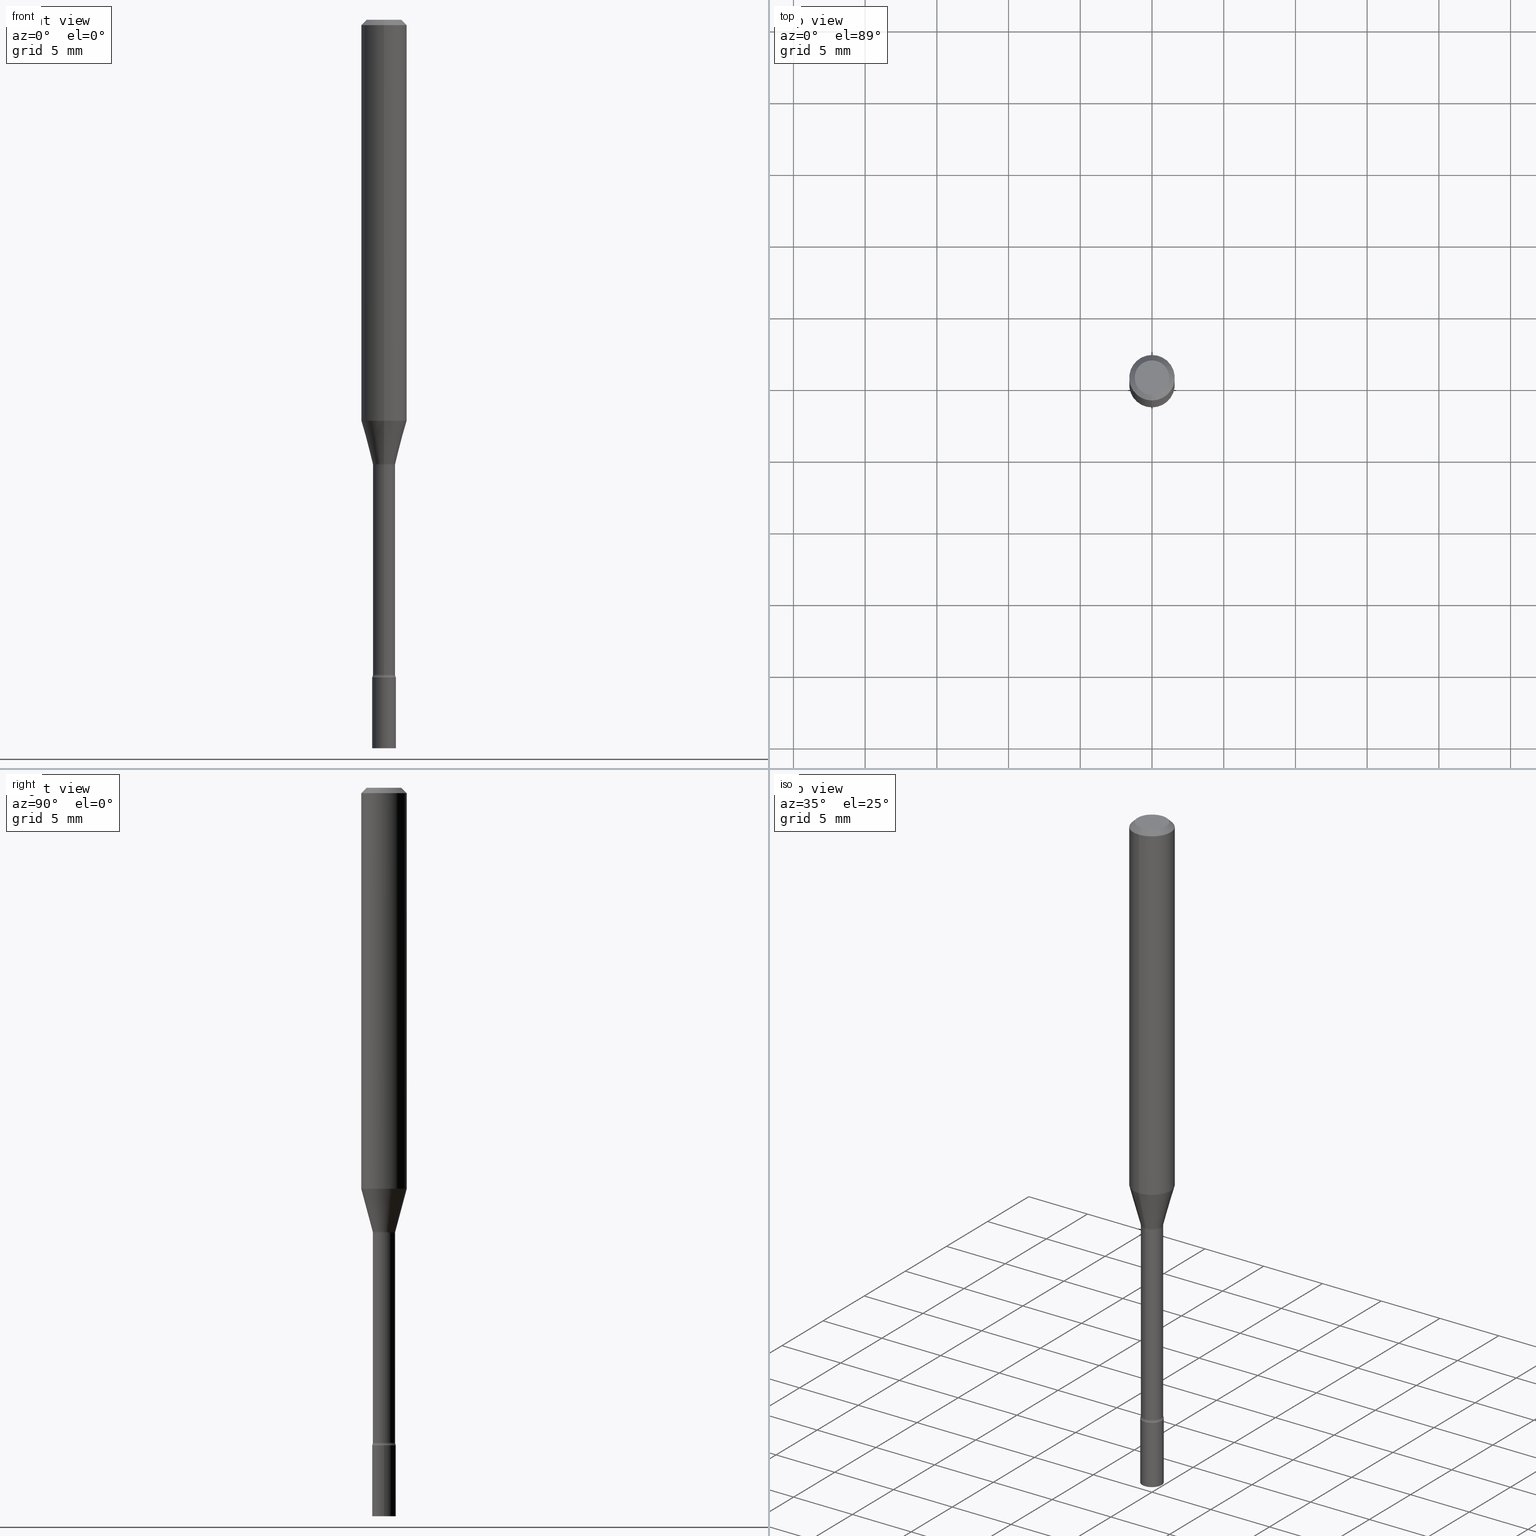
[diagram: canonical four-view strip — front | top / right | iso, engineering-drawing reading convention]
A machine part, canonical four-view strip (front | top / right | iso — engineering-drawing reading convention). The complete STEP part file that produces these views, byte-faithful:
ISO-10303-21;
HEADER;
FILE_DESCRIPTION (( 'STEP AP203' ),
    '1' );
FILE_NAME ('04308.STEP',
    '2024-03-08T23:02:27',
    ( '' ),
    ( '' ),
    'SwSTEP 2.0',
    'SolidWorks 2023',
    '' );
FILE_SCHEMA (( 'CONFIG_CONTROL_DESIGN' ));
ENDSEC;

DATA;
#1 = EDGE_CURVE ( 'NONE', #6, #374, #116, .T. ) ;
#2 = CARTESIAN_POINT ( 'NONE',  ( 4.364351673553919652E-16, 0.06249999999999995143, -0.01500000000000024751 ) ) ;
#3 = CIRCLE ( 'NONE', #333, 0.06250000000000000000 ) ;
#4 = ADVANCED_FACE ( 'NONE', ( #337 ), #447, .T. ) ;
#5 = CARTESIAN_POINT ( 'NONE',  ( 2.269462870248477753E-16, 0.03249999999999370059, -1.804999999999999938 ) ) ;
#6 = VERTEX_POINT ( 'NONE', #324 ) ;
#7 = EDGE_LOOP ( 'NONE', ( #416, #493, #178, #372 ) ) ;
#8 = AXIS2_PLACEMENT_3D ( 'NONE', #114, #312, #519 ) ;
#9 = DIRECTION ( 'NONE',  ( -2.445468806185136597E-29, 3.491481338843145583E-15, 1.000000000000000000 ) ) ;
#10 = CIRCLE ( 'NONE', #61, 0.03250000000000000111 ) ;
#11 = VERTEX_POINT ( 'NONE', #13 ) ;
#12 = CARTESIAN_POINT ( 'NONE',  ( 4.414159783248886756E-29, -6.301996953432445034E-15, -1.804999999999999938 ) ) ;
#13 = CARTESIAN_POINT ( 'NONE',  ( -4.364351673553912750E-16, -0.06250000000000005551, -0.01499999999999981209 ) ) ;
#14 = ORIENTED_EDGE ( 'NONE', *, *, #105, .T. ) ;
#15 = ORIENTED_EDGE ( 'NONE', *, *, #302, .F. ) ;
#16 = CALENDAR_DATE ( 2024, 8, 3 ) ;
#17 = EDGE_LOOP ( 'NONE', ( #123, #14 ) ) ;
#18 = AXIS2_PLACEMENT_3D ( 'NONE', #85, #35, #206 ) ;
#19 = EDGE_CURVE ( 'NONE', #182, #11, #86, .T. ) ;
#20 = CC_DESIGN_APPROVAL ( #439, ( #512 ) ) ;
#21 = ORIENTED_EDGE ( 'NONE', *, *, #73, .F. ) ;
#22 = PERSON_AND_ORGANIZATION ( #395, #256 ) ;
#23 = COORDINATED_UNIVERSAL_TIME_OFFSET ( 5, 0, .BEHIND. ) ;
#24 = DIRECTION ( 'NONE',  ( 6.982962677686265922E-15, 1.000000000000000000, -3.491411054533210764E-15 ) ) ;
#25 = DIRECTION ( 'NONE',  ( -1.000000000000000000, 6.982962677686265922E-15, -4.883557194083112340E-29 ) ) ;
#26 = ADVANCED_FACE ( 'NONE', ( #370 ), #257, .T. ) ;
#27 = CARTESIAN_POINT ( 'NONE',  ( 0.000000000000000000, 0.000000000000000000, 0.000000000000000000 ) ) ;
#28 = AXIS2_PLACEMENT_3D ( 'NONE', #307, #511, #470 ) ;
#29 = CARTESIAN_POINT ( 'NONE',  ( 3.668276828184677738E-31, -5.237116581799826623E-17, -0.01500000000000003067 ) ) ;
#30 = APPROVAL ( #183, 'UNSPECIFIED' ) ;
#31 = DIRECTION ( 'NONE',  ( -2.445468806185136597E-29, 3.491481338843145583E-15, 1.000000000000000000 ) ) ;
#32 = ADVANCED_FACE ( 'NONE', ( #57 ), #265, .T. ) ;
#33 = TOROIDAL_SURFACE ( 'NONE', #316, 0.04555000000000006960, 0.01500000000000001853 ) ;
#34 = COORDINATED_UNIVERSAL_TIME_OFFSET ( 5, 0, .BEHIND. ) ;
#35 = DIRECTION ( 'NONE',  ( -2.445517885456446816E-29, 3.491411054533210764E-15, 1.000000000000000000 ) ) ;
#36 = FACE_OUTER_BOUND ( 'NONE', #207, .T. ) ;
#37 = ADVANCED_FACE ( 'NONE', ( #226 ), #299, .T. ) ;
#38 = MANIFOLD_SOLID_BREP ( 'Body-Move/Copy2[2]', #188 ) ;
#39 = CARTESIAN_POINT ( 'NONE',  ( 2.988361198319589844E-29, -4.266416281312019547E-15, -1.221974787463810941 ) ) ;
#40 = DIRECTION ( 'NONE',  ( -1.000000000000000000, 6.982962677686265922E-15, -4.876176775795935793E-29 ) ) ;
#41 = AXIS2_PLACEMENT_3D ( 'NONE', #218, #460, #128 ) ;
#42 = CC_DESIGN_PERSON_AND_ORGANIZATION_ASSIGNMENT ( #163, #158, ( #456 ) ) ;
#43 = ORIENTED_EDGE ( 'NONE', *, *, #171, .T. ) ;
#44 = DIRECTION ( 'NONE',  ( -2.445517885456446816E-29, 3.491411054533210764E-15, 1.000000000000000000 ) ) ;
#45 = ORIENTED_EDGE ( 'NONE', *, *, #1, .F. ) ;
#46 = ORIENTED_EDGE ( 'NONE', *, *, #233, .T. ) ;
#47 = ADVANCED_FACE ( 'NONE', ( #63 ), #179, .F. ) ;
#48 = CARTESIAN_POINT ( 'NONE',  ( 0.03250000000000000111, -2.269462870248036484E-16, 1.584757452133678993E-30 ) ) ;
#49 = CONICAL_SURFACE ( 'NONE', #506, 0.06250000000000000000, 0.7853981633974483900 ) ;
#50 = EDGE_LOOP ( 'NONE', ( #331, #423, #247, #172 ) ) ;
#51 = AXIS2_PLACEMENT_3D ( 'NONE', #281, #442, #40 ) ;
#52 = VERTEX_POINT ( 'NONE', #468 ) ;
#53 = VERTEX_POINT ( 'NONE', #348 ) ;
#54 = EDGE_CURVE ( 'NONE', #88, #498, #357, .T. ) ;
#55 = EDGE_LOOP ( 'NONE', ( #363, #262, #458, #177 ) ) ;
#56 = EDGE_CURVE ( 'NONE', #503, #361, #515, .T. ) ;
#57 = FACE_OUTER_BOUND ( 'NONE', #293, .T. ) ;
#58 = ORIENTED_EDGE ( 'NONE', *, *, #192, .T. ) ;
#59 = DIRECTION ( 'NONE',  ( -6.982962677686265922E-15, -1.000000000000000000, 4.397537249142375435E-15 ) ) ;
#60 = CIRCLE ( 'NONE', #161, 0.03250000000000000111 ) ;
#61 = AXIS2_PLACEMENT_3D ( 'NONE', #499, #336, #502 ) ;
#62 = APPROVAL_STATUS ( 'not_yet_approved' ) ;
#63 = FACE_OUTER_BOUND ( 'NONE', #249, .T. ) ;
#64 = ADVANCED_FACE ( 'NONE', ( #71 ), #186, .T. ) ;
#65 = CARTESIAN_POINT ( 'NONE',  ( 0.03250000000000000111, -6.529070103636681305E-15, -1.804999999999999938 ) ) ;
#66 = CC_DESIGN_PERSON_AND_ORGANIZATION_ASSIGNMENT ( #467, #426, ( #154 ) ) ;
#67 = LINE ( 'NONE', #185, #162 ) ;
#68 = DIRECTION ( 'NONE',  ( -6.982962677686265922E-15, -1.000000000000000000, 3.491411054533210764E-15 ) ) ;
#69 = AXIS2_PLACEMENT_3D ( 'NONE', #335, #9, #97 ) ;
#70 = CC_DESIGN_APPROVAL ( #417, ( #154 ) ) ;
#71 = FACE_OUTER_BOUND ( 'NONE', #136, .T. ) ;
#72 = DIRECTION ( 'NONE',  ( 1.000000000000000000, -6.982962677686258033E-15, 0.000000000000000000 ) ) ;
#73 = EDGE_CURVE ( 'NONE', #52, #260, #60, .T. ) ;
#74 = APPROVAL_STATUS ( 'not_yet_approved' ) ;
#75 = DIRECTION ( 'NONE',  ( -2.445517885456446816E-29, 3.491411054533210764E-15, 1.000000000000000000 ) ) ;
#76 = AXIS2_PLACEMENT_3D ( 'NONE', #330, #264, #59 ) ;
#77 = EDGE_CURVE ( 'NONE', #418, #361, #380, .T. ) ;
#78 = DIRECTION ( 'NONE',  ( 1.000000000000000000, -6.982962677686265922E-15, 4.876176775795935793E-29 ) ) ;
#79 = EDGE_CURVE ( 'NONE', #323, #6, #386, .T. ) ;
#80 = FACE_OUTER_BOUND ( 'NONE', #325, .T. ) ;
#81 = APPLICATION_PROTOCOL_DEFINITION ( 'international standard', 'config_control_design', 1994, #419 ) ;
#82 = PLANE ( 'NONE',  #431 ) ;
#83 = ORIENTED_EDGE ( 'NONE', *, *, #396, .F. ) ;
#84 = CALENDAR_DATE ( 2024, 8, 3 ) ;
#85 = CARTESIAN_POINT ( 'NONE',  ( 2.978866999261165530E-29, -4.252861626184099890E-15, -1.218092501787273019 ) ) ;
#86 = CIRCLE ( 'NONE', #342, 0.06250000000000000000 ) ;
#87 = ORIENTED_EDGE ( 'NONE', *, *, #436, .F. ) ;
#88 = VERTEX_POINT ( 'NONE', #65 ) ;
#89 = LINE ( 'NONE', #214, #242 ) ;
#90 = ORIENTED_EDGE ( 'NONE', *, *, #19, .F. ) ;
#91 = EDGE_LOOP ( 'NONE', ( #410, #217, #421, #15 ) ) ;
#92 = VECTOR ( 'NONE', #44, 39.37007874015748143 ) ;
#93 = EDGE_LOOP ( 'NONE', ( #327, #142, #492, #87 ) ) ;
#94 = LOCAL_TIME ( 18, 2, 27.00000000000000000, #478 ) ;
#95 = SECURITY_CLASSIFICATION_LEVEL ( 'unclassified' ) ;
#96 = ORIENTED_EDGE ( 'NONE', *, *, #436, .T. ) ;
#97 = DIRECTION ( 'NONE',  ( 1.000000000000000000, -6.982962677686265922E-15, 4.876176775795935232E-29 ) ) ;
#98 = DATE_AND_TIME ( #429, #310 ) ;
#99 = ORIENTED_EDGE ( 'NONE', *, *, #138, .F. ) ;
#100 = DIRECTION ( 'NONE',  ( -2.445517885456446816E-29, 3.491411054533210764E-15, 1.000000000000000000 ) ) ;
#101 = DIRECTION ( 'NONE',  ( -2.445517885456446816E-29, 3.491411054533210764E-15, 1.000000000000000000 ) ) ;
#102 = AXIS2_PLACEMENT_3D ( 'NONE', #346, #101, #266 ) ;
#103 = DIRECTION ( 'NONE',  ( -6.982962677686265922E-15, -1.000000000000000000, 3.491411054533210764E-15 ) ) ;
#104 = DESIGN_CONTEXT ( 'detailed design', #419, 'design' ) ;
#105 = EDGE_CURVE ( 'NONE', #498, #88, #365, .T. ) ;
#106 = CARTESIAN_POINT ( 'NONE',  ( 4.414071195164171423E-29, -6.302123816611877952E-15, -1.804999999999999938 ) ) ;
#107 = ADVANCED_FACE ( 'NONE', ( #340 ), #445, .F. ) ;
#108 = FACE_OUTER_BOUND ( 'NONE', #180, .T. ) ;
#109 = CIRCLE ( 'NONE', #394, 0.03106111260566398607 ) ;
#110 = APPROVAL_PERSON_ORGANIZATION ( #319, #439, #317 ) ;
#111 = DIRECTION ( 'NONE',  ( 2.445517885456446536E-29, -3.491411054533210764E-15, -1.000000000000000000 ) ) ;
#112 = DIRECTION ( 'NONE',  ( -6.982962677686265922E-15, -1.000000000000000000, 0.000000000000000000 ) ) ;
#113 = DIRECTION ( 'NONE',  ( -6.982962677686265922E-15, -1.000000000000000000, 4.370956789862821150E-15 ) ) ;
#114 = CARTESIAN_POINT ( 'NONE',  ( 3.236522161387554650E-16, 0.04554999999999573279, -1.221974787463810941 ) ) ;
#115 = CLOSED_SHELL ( 'NONE', ( #4, #269, #462, #349 ) ) ;
#116 = CIRCLE ( 'NONE', #412, 0.06250000000000000000 ) ;
#117 = AXIS2_PLACEMENT_3D ( 'NONE', #345, #384, #146 ) ;
#118 = CALENDAR_DATE ( 2024, 8, 3 ) ;
#119 = DIRECTION ( 'NONE',  ( 4.937700262164548042E-15, 0.7071067811865451302, -0.7071067811865499042 ) ) ;
#120 = CC_DESIGN_DATE_AND_TIME_ASSIGNMENT ( #98, #378, ( #507 ) ) ;
#121 = FACE_OUTER_BOUND ( 'NONE', #250, .T. ) ;
#122 = CARTESIAN_POINT ( 'NONE',  ( 3.668276828184677738E-31, -5.237116581799826623E-17, -0.01500000000000003067 ) ) ;
#123 = ORIENTED_EDGE ( 'NONE', *, *, #54, .T. ) ;
#124 = CIRCLE ( 'NONE', #255, 0.03106111260566398607 ) ;
#125 = ADVANCED_FACE ( 'NONE', ( #473 ), #270, .T. ) ;
#126 = CC_DESIGN_PERSON_AND_ORGANIZATION_ASSIGNMENT ( #148, #258, ( #507 ) ) ;
#127 = DIRECTION ( 'NONE',  ( -2.445468806185136597E-29, 3.491481338843145583E-15, 1.000000000000000000 ) ) ;
#128 = DIRECTION ( 'NONE',  ( -6.982962677686265922E-15, -1.000000000000000000, 3.491411054533210764E-15 ) ) ;
#129 = ADVANCED_FACE ( 'NONE', ( #108 ), #49, .T. ) ;
#130 = ORIENTED_EDGE ( 'NONE', *, *, #455, .F. ) ;
#131 = DIRECTION ( 'NONE',  ( -2.445517885456446816E-29, 3.491411054533210764E-15, 1.000000000000000000 ) ) ;
#132 = ORIENTED_EDGE ( 'NONE', *, *, #313, .F. ) ;
#133 = ORIENTED_EDGE ( 'NONE', *, *, #491, .F. ) ;
#134 = CARTESIAN_POINT ( 'NONE',  ( -4.364351673553916201E-16, -0.06250000000000000000, 2.182131909083256727E-16 ) ) ;
#135 = VECTOR ( 'NONE', #119, 39.37007874015748143 ) ;
#136 = EDGE_LOOP ( 'NONE', ( #168, #409, #96, #90 ) ) ;
#137 = CC_DESIGN_APPROVAL ( #30, ( #507 ) ) ;
#138 = EDGE_CURVE ( 'NONE', #53, #361, #322, .T. ) ;
#139 = ORIENTED_EDGE ( 'NONE', *, *, #77, .F. ) ;
#140 = CARTESIAN_POINT ( 'NONE',  ( 4.396073281200893495E-29, -6.276175259972856303E-15, -1.797604224178627419 ) ) ;
#141 = ORIENTED_EDGE ( 'NONE', *, *, #291, .F. ) ;
#142 = ORIENTED_EDGE ( 'NONE', *, *, #267, .T. ) ;
#143 = CALENDAR_DATE ( 2024, 8, 3 ) ;
#144 = DIRECTION ( 'NONE',  ( -2.445517885456446816E-29, 3.491411054533210764E-15, 1.000000000000000000 ) ) ;
#145 = AXIS2_PLACEMENT_3D ( 'NONE', #248, #75, #520 ) ;
#146 = DIRECTION ( 'NONE',  ( 1.000000000000000000, -6.982962677686265922E-15, 4.876176775795935232E-29 ) ) ;
#147 = DIRECTION ( 'NONE',  ( -6.982962677686265922E-15, -1.000000000000000000, 0.000000000000000000 ) ) ;
#148 = PERSON_AND_ORGANIZATION ( #395, #256 ) ;
#149 = DIRECTION ( 'NONE',  ( -6.982962677686265922E-15, -1.000000000000000000, 3.491411054533210764E-15 ) ) ;
#150 = DIRECTION ( 'NONE',  ( -2.445517885456446816E-29, 3.491411054533210764E-15, 1.000000000000000000 ) ) ;
#151 = DIRECTION ( 'NONE',  ( -2.445517885456446816E-29, 3.491411054533210764E-15, 1.000000000000000000 ) ) ;
#152 = VECTOR ( 'NONE', #428, 39.37007874015748143 ) ;
#153 = AXIS2_PLACEMENT_3D ( 'NONE', #344, #425, #68 ) ;
#154 = PRODUCT_DEFINITION_FORMATION_WITH_SPECIFIED_SOURCE ( 'ANY', '', #456, .NOT_KNOWN. ) ;
#155 = DIRECTION ( 'NONE',  ( -6.982962677686265922E-15, -1.000000000000000000, 3.491411054533210764E-15 ) ) ;
#156 = LINE ( 'NONE', #314, #92 ) ;
#157 = EDGE_CURVE ( 'NONE', #328, #52, #471, .T. ) ;
#158 = PERSON_AND_ORGANIZATION_ROLE ( 'design_owner' ) ;
#159 = CARTESIAN_POINT ( 'NONE',  ( -2.269462870247595215E-16, -0.03250000000000630856, -1.804999999999999938 ) ) ;
#160 = CC_DESIGN_DATE_AND_TIME_ASSIGNMENT ( #174, #239, ( #512 ) ) ;
#161 = AXIS2_PLACEMENT_3D ( 'NONE', #237, #151, #147 ) ;
#162 = VECTOR ( 'NONE', #347, 39.37007874015748854 ) ;
#163 = PERSON_AND_ORGANIZATION ( #395, #256 ) ;
#164 = FACE_OUTER_BOUND ( 'NONE', #91, .T. ) ;
#165 = CARTESIAN_POINT ( 'NONE',  ( 0.000000000000000000, 0.000000000000000000, 0.000000000000000000 ) ) ;
#166 = CARTESIAN_POINT ( 'NONE',  ( -3.773273898774340269E-16, -0.04749999999999999362, 1.369247756577365860E-16 ) ) ;
#167 = EDGE_CURVE ( 'NONE', #328, #53, #296, .T. ) ;
#168 = ORIENTED_EDGE ( 'NONE', *, *, #267, .F. ) ;
#169 = AXIS2_PLACEMENT_3D ( 'NONE', #39, #393, #360 ) ;
#170 = ORIENTED_EDGE ( 'NONE', *, *, #398, .T. ) ;
#171 = EDGE_CURVE ( 'NONE', #328, #418, #283, .T. ) ;
#172 = ORIENTED_EDGE ( 'NONE', *, *, #105, .F. ) ;
#173 = VERTEX_POINT ( 'NONE', #238 ) ;
#174 = DATE_AND_TIME ( #118, #94 ) ;
#175 = VERTEX_POINT ( 'NONE', #193 ) ;
#176 = DIRECTION ( 'NONE',  ( 1.000000000000000000, -6.982962677686258033E-15, 0.000000000000000000 ) ) ;
#177 = ORIENTED_EDGE ( 'NONE', *, *, #407, .T. ) ;
#178 = ORIENTED_EDGE ( 'NONE', *, *, #54, .F. ) ;
#179 = TOROIDAL_SURFACE ( 'NONE', #28, 0.04555000000000000021, 0.01499999999999998730 ) ;
#180 = EDGE_LOOP ( 'NONE', ( #364, #449, #452, #141 ) ) ;
#181 = DIRECTION ( 'NONE',  ( -2.445517885456446816E-29, 3.491411054533210764E-15, 1.000000000000000000 ) ) ;
#182 = VERTEX_POINT ( 'NONE', #229 ) ;
#183 = APPROVAL_STATUS ( 'not_yet_approved' ) ;
#184 = EDGE_CURVE ( 'NONE', #323, #503, #124, .T. ) ;
#185 = CARTESIAN_POINT ( 'NONE',  ( -2.168985900527322372E-16, -0.03106111260566823615, -1.218092501787273019 ) ) ;
#186 = CYLINDRICAL_SURFACE ( 'NONE', #153, 0.06250000000000000000 ) ;
#187 = DIRECTION ( 'NONE',  ( 1.000000000000000000, -6.982962677686258033E-15, 0.000000000000000000 ) ) ;
#188 = CLOSED_SHELL ( 'NONE', ( #47, #37, #305, #129, #26, #300, #32, #64, #276, #489, #341, #450, #125, #107 ) ) ;
#189 = AXIS2_PLACEMENT_3D ( 'NONE', #106, #466, #187 ) ;
#190 = CARTESIAN_POINT ( 'NONE',  ( 4.396073281200893495E-29, -6.276175259972856303E-15, -1.797604224178627419 ) ) ;
#191 = DIRECTION ( 'NONE',  ( 7.105427357601001859E-15, 1.000000000000000000, 0.000000000000000000 ) ) ;
#192 = EDGE_CURVE ( 'NONE', #503, #323, #109, .T. ) ;
#193 = CARTESIAN_POINT ( 'NONE',  ( 0.03250000000000000111, -7.209908964711093729E-15, -2.000000000000000000 ) ) ;
#194 = AXIS2_PLACEMENT_3D ( 'NONE', #27, #304, #149 ) ;
#195 = CC_DESIGN_SECURITY_CLASSIFICATION ( #507, ( #154 ) ) ;
#196 = CARTESIAN_POINT ( 'NONE',  ( 3.323958445579647462E-16, 0.03106111260565973600, -1.218092501787273241 ) ) ;
#197 = DIRECTION ( 'NONE',  ( -2.445517885456446816E-29, 3.491411054533210764E-15, 1.000000000000000000 ) ) ;
#198 = CC_DESIGN_PERSON_AND_ORGANIZATION_ASSIGNMENT ( #383, #509, ( #154 ) ) ;
#199 = LENGTH_MEASURE_WITH_UNIT ( LENGTH_MEASURE( 0.02539999999999999897 ), #443 );
#200 = CARTESIAN_POINT ( 'NONE',  ( 4.395985056095466653E-29, -6.276301603345288080E-15, -1.797604224178627419 ) ) ;
#201 = AXIS2_PLACEMENT_3D ( 'NONE', #122, #402, #282 ) ;
#202 = CIRCLE ( 'NONE', #343, 0.03250000000000000111 ) ;
#203 = CARTESIAN_POINT ( 'NONE',  ( -2.133295098032855987E-16, -0.03055000000000427512, -1.221974787463810719 ) ) ;
#204 = EDGE_CURVE ( 'NONE', #361, #53, #315, .T. ) ;
#205 = ORIENTED_EDGE ( 'NONE', *, *, #204, .T. ) ;
#206 = DIRECTION ( 'NONE',  ( -6.982962677686265922E-15, -1.000000000000000000, 4.397537249142375435E-15 ) ) ;
#207 = EDGE_LOOP ( 'NONE', ( #58, #415, #259, #133 ) ) ;
#208 = MANIFOLD_SOLID_BREP ( 'Body-Move/Copy2[1]', #115 ) ;
#209 = LINE ( 'NONE', #48, #385 ) ;
#210 = DIRECTION ( 'NONE',  ( -6.982962677686265922E-15, -1.000000000000000000, 4.370956789862821150E-15 ) ) ;
#211 = ORIENTED_EDGE ( 'NONE', *, *, #167, .F. ) ;
#212 = AXIS2_PLACEMENT_3D ( 'NONE', #517, #463, #103 ) ;
#213 = CIRCLE ( 'NONE', #454, 0.04749999999999999362 ) ;
#214 = CARTESIAN_POINT ( 'NONE',  ( -0.03250000000000000111, 2.309263891220325683E-16, -1.598653904332844407E-30 ) ) ;
#215 = ORIENTED_EDGE ( 'NONE', *, *, #19, .T. ) ;
#216 = PERSON_AND_ORGANIZATION ( #395, #256 ) ;
#217 = ORIENTED_EDGE ( 'NONE', *, *, #157, .T. ) ;
#218 = CARTESIAN_POINT ( 'NONE',  ( 0.000000000000000000, 0.000000000000000000, 0.000000000000000000 ) ) ;
#219 = COORDINATED_UNIVERSAL_TIME_OFFSET ( 5, 0, .BEHIND. ) ;
#220 = ORIENTED_EDGE ( 'NONE', *, *, #204, .F. ) ;
#221 = ORIENTED_EDGE ( 'NONE', *, *, #138, .T. ) ;
#222 = ORIENTED_EDGE ( 'NONE', *, *, #184, .F. ) ;
#223 = AXIS2_PLACEMENT_3D ( 'NONE', #274, #31, #72 ) ;
#224 = DIRECTION ( 'NONE',  ( -2.445517885456446816E-29, 3.491411054533210764E-15, 1.000000000000000000 ) ) ;
#225 = VECTOR ( 'NONE', #440, 39.37007874015748143 ) ;
#226 = FACE_OUTER_BOUND ( 'NONE', #457, .T. ) ;
#227 = APPROVAL_ROLE ( '' ) ;
#228 = CARTESIAN_POINT ( 'NONE',  ( -0.03250000000000000111, -6.411616858027052188E-15, -2.000000000000000000 ) ) ;
#229 = CARTESIAN_POINT ( 'NONE',  ( 4.440892098500897333E-16, 0.06249999999999995837, -0.01500000000000024751 ) ) ;
#230 = DATE_AND_TIME ( #16, #487 ) ;
#231 = EDGE_CURVE ( 'NONE', #374, #6, #465, .T. ) ;
#232 = CARTESIAN_POINT ( 'NONE',  ( -2.133295098033156247E-16, -0.03055000000000002852, 1.066626077159896874E-16 ) ) ;
#233 = EDGE_CURVE ( 'NONE', #323, #53, #279, .T. ) ;
#234 = DIRECTION ( 'NONE',  ( -2.445517885456446816E-29, 3.491411054533210764E-15, 1.000000000000000000 ) ) ;
#235 = AXIS2_PLACEMENT_3D ( 'NONE', #476, #277, #78 ) ;
#236 = AXIS2_PLACEMENT_3D ( 'NONE', #379, #111, #24 ) ;
#237 = CARTESIAN_POINT ( 'NONE',  ( 4.414159783248886756E-29, -6.301996953432445034E-15, -1.804999999999999938 ) ) ;
#238 = CARTESIAN_POINT ( 'NONE',  ( 3.840629472727447874E-16, 0.04749999999999999362, -1.947592745229184365E-16 ) ) ;
#239 = DATE_TIME_ROLE ( 'creation_date' ) ;
#240 = DIRECTION ( 'NONE',  ( -2.445517885456446816E-29, 3.491411054533210764E-15, 1.000000000000000000 ) ) ;
#241 = AXIS2_PLACEMENT_3D ( 'NONE', #432, #234, #268 ) ;
#242 = VECTOR ( 'NONE', #329, 39.37007874015748143 ) ;
#243 = LINE ( 'NONE', #2, #135 ) ;
#244 = DIRECTION ( 'NONE',  ( -2.445517885456446536E-29, 3.491411054533210764E-15, 1.000000000000000000 ) ) ;
#245 = PLANE ( 'NONE',  #51 ) ;
#246 = CONICAL_SURFACE ( 'NONE', #18, 0.03106111260566398607, 0.2617993877991497409 ) ;
#247 = ORIENTED_EDGE ( 'NONE', *, *, #390, .T. ) ;
#248 = CARTESIAN_POINT ( 'NONE',  ( 7.071765068560637436E-46, -1.009620043356421490E-31, -2.891724943259091910E-17 ) ) ;
#249 = EDGE_LOOP ( 'NONE', ( #222, #46, #221, #287 ) ) ;
#250 = EDGE_LOOP ( 'NONE', ( #130, #83 ) ) ;
#251 = EDGE_CURVE ( 'NONE', #367, #173, #297, .T. ) ;
#252 = CARTESIAN_POINT ( 'NONE',  ( 2.691930656127892449E-29, -3.843209042442780921E-15, -1.100760976698174520 ) ) ;
#253 = CC_DESIGN_PERSON_AND_ORGANIZATION_ASSIGNMENT ( #216, #369, ( #512 ) ) ;
#254 = ORIENTED_EDGE ( 'NONE', *, *, #56, .T. ) ;
#255 = AXIS2_PLACEMENT_3D ( 'NONE', #485, #240, #354 ) ;
#256 = ORGANIZATION ( 'UNSPECIFIED', 'UNSPECIFIED', '' ) ;
#257 = CYLINDRICAL_SURFACE ( 'NONE', #41, 0.06250000000000000000 ) ;
#258 = PERSON_AND_ORGANIZATION_ROLE ( 'classification_officer' ) ;
#259 = ORIENTED_EDGE ( 'NONE', *, *, #231, .F. ) ;
#260 = VERTEX_POINT ( 'NONE', #159 ) ;
#261 = APPROVAL_ROLE ( '' ) ;
#262 = ORIENTED_EDGE ( 'NONE', *, *, #398, .F. ) ;
#263 = DIRECTION ( 'NONE',  ( -6.982962677686265922E-15, -1.000000000000000000, 0.000000000000000000 ) ) ;
#264 = DIRECTION ( 'NONE',  ( -2.445517885456446816E-29, 3.491411054533210764E-15, 1.000000000000000000 ) ) ;
#265 = CONICAL_SURFACE ( 'NONE', #76, 0.03106111260566398607, 0.2617993877991497409 ) ;
#266 = DIRECTION ( 'NONE',  ( -6.982962677686265922E-15, -1.000000000000000000, 4.471109645931689948E-15 ) ) ;
#267 = EDGE_CURVE ( 'NONE', #6, #182, #156, .T. ) ;
#268 = DIRECTION ( 'NONE',  ( -6.982962677686265922E-15, -1.000000000000000000, 3.491411054533210764E-15 ) ) ;
#269 = ADVANCED_FACE ( 'NONE', ( #479 ), #401, .T. ) ;
#270 = CYLINDRICAL_SURFACE ( 'NONE', #241, 0.03055000000000002852 ) ;
#271 = CARTESIAN_POINT ( 'NONE',  ( 2.207024792658399811E-16, 0.03106111260565973600, -1.218092501787273241 ) ) ;
#272 = AXIS2_PLACEMENT_3D ( 'NONE', #433, #25, #350 ) ;
#273 = TOROIDAL_SURFACE ( 'NONE', #280, 0.04555000000000006960, 0.01500000000000001853 ) ;
#274 = CARTESIAN_POINT ( 'NONE',  ( 4.414071195164171423E-29, -6.302123816611877952E-15, -1.804999999999999938 ) ) ;
#275 = DIRECTION ( 'NONE',  ( -1.000000000000000000, 6.982962677686265922E-15, -4.883557194083112340E-29 ) ) ;
#276 = ADVANCED_FACE ( 'NONE', ( #362 ), #430, .T. ) ;
#277 = DIRECTION ( 'NONE',  ( -2.438088387897960049E-29, 3.491481338843145188E-15, 1.000000000000000000 ) ) ;
#278 = ADVANCED_BREP_SHAPE_REPRESENTATION ( '04308', ( #208, #38, #284 ), #413 ) ;
#279 = CIRCLE ( 'NONE', #8, 0.01499999999999998557 ) ;
#280 = AXIS2_PLACEMENT_3D ( 'NONE', #200, #197, #155 ) ;
#281 = CARTESIAN_POINT ( 'NONE',  ( 2.269462870248525577E-16, 0.03249999999999301364, -2.000000000000000000 ) ) ;
#282 = DIRECTION ( 'NONE',  ( 6.982962677686265922E-15, 1.000000000000000000, -3.483106191921935554E-15 ) ) ;
#283 = CIRCLE ( 'NONE', #351, 0.03055000000000004934 ) ;
#284 = AXIS2_PLACEMENT_3D ( 'NONE', #165, #482, #494 ) ;
#285 = ORIENTED_EDGE ( 'NONE', *, *, #501, .F. ) ;
#286 = DIRECTION ( 'NONE',  ( -2.445517885456446816E-29, 3.491411054533210764E-15, 1.000000000000000000 ) ) ;
#287 = ORIENTED_EDGE ( 'NONE', *, *, #56, .F. ) ;
#288 = EDGE_LOOP ( 'NONE', ( #132, #285, #496, #215 ) ) ;
#289 = ORIENTED_EDGE ( 'NONE', *, *, #251, .T. ) ;
#290 = APPROVAL_PERSON_ORGANIZATION ( #392, #417, #227 ) ;
#291 = EDGE_CURVE ( 'NONE', #173, #182, #243, .T. ) ;
#292 = DIRECTION ( 'NONE',  ( -2.445517885456446816E-29, 3.491411054533210764E-15, 1.000000000000000000 ) ) ;
#293 = EDGE_LOOP ( 'NONE', ( #377, #404, #459, #45 ) ) ;
#294 = CARTESIAN_POINT ( 'NONE',  ( 3.668276828184677738E-31, -5.237116581799826623E-17, -0.01500000000000003067 ) ) ;
#295 = FACE_OUTER_BOUND ( 'NONE', #50, .T. ) ;
#296 = LINE ( 'NONE', #514, #332 ) ;
#297 = CIRCLE ( 'NONE', #145, 0.04749999999999999362 ) ;
#298 = AXIS2_PLACEMENT_3D ( 'NONE', #461, #127, #176 ) ;
#299 = CYLINDRICAL_SURFACE ( 'NONE', #194, 0.03055000000000002852 ) ;
#300 = ADVANCED_FACE ( 'NONE', ( #36 ), #246, .T. ) ;
#301 = APPROVAL_DATE_TIME ( #381, #417 ) ;
#302 = EDGE_CURVE ( 'NONE', #418, #260, #403, .T. ) ;
#303 = DIRECTION ( 'NONE',  ( -6.982962677686265922E-15, -1.000000000000000000, 3.483106191921935554E-15 ) ) ;
#304 = DIRECTION ( 'NONE',  ( -2.445517885456446816E-29, 3.491411054533210764E-15, 1.000000000000000000 ) ) ;
#305 = ADVANCED_FACE ( 'NONE', ( #164 ), #273, .F. ) ;
#306 = FACE_OUTER_BOUND ( 'NONE', #321, .T. ) ;
#307 = CARTESIAN_POINT ( 'NONE',  ( 2.988301224687461483E-29, -4.266502166966714459E-15, -1.221974787463810941 ) ) ;
#308 = DIRECTION ( 'NONE',  ( -2.445517885456446816E-29, 3.491411054533210764E-15, 1.000000000000000000 ) ) ;
#309 = AXIS2_PLACEMENT_3D ( 'NONE', #399, #275, #406 ) ;
#310 = LOCAL_TIME ( 18, 2, 27.00000000000000000, #219 ) ;
#311 = DIRECTION ( 'NONE',  ( -6.982962677686265922E-15, -1.000000000000000000, 4.397537249142375435E-15 ) ) ;
#312 = DIRECTION ( 'NONE',  ( 1.000000000000000000, -7.105427357601001070E-15, 4.926314647807530452E-29 ) ) ;
#313 = EDGE_CURVE ( 'NONE', #367, #11, #318, .T. ) ;
#314 = CARTESIAN_POINT ( 'NONE',  ( 4.440892098500625669E-16, 0.06250000000000000000, -2.182131909083256727E-16 ) ) ;
#315 = CIRCLE ( 'NONE', #169, 0.03055000000000000770 ) ;
#316 = AXIS2_PLACEMENT_3D ( 'NONE', #422, #224, #376 ) ;
#317 = APPROVAL_ROLE ( '' ) ;
#318 = LINE ( 'NONE', #475, #225 ) ;
#319 = PERSON_AND_ORGANIZATION ( #395, #256 ) ;
#320 = CARTESIAN_POINT ( 'NONE',  ( -4.364351673553646016E-16, -0.06250000000000383027, -1.100760976698174298 ) ) ;
#321 = EDGE_LOOP ( 'NONE', ( #368, #289 ) ) ;
#322 = CIRCLE ( 'NONE', #102, 0.03055000000000000770 ) ;
#323 = VERTEX_POINT ( 'NONE', #196 ) ;
#324 = CARTESIAN_POINT ( 'NONE',  ( 4.440892098500895360E-16, 0.06249999999999616279, -1.100760976698174742 ) ) ;
#325 = EDGE_LOOP ( 'NONE', ( #500, #21 ) ) ;
#326 = DIRECTION ( 'NONE',  ( -2.445468806185136877E-29, 3.491481338843145188E-15, 1.000000000000000000 ) ) ;
#327 = ORIENTED_EDGE ( 'NONE', *, *, #231, .T. ) ;
#328 = VERTEX_POINT ( 'NONE', #355 ) ;
#329 = DIRECTION ( 'NONE',  ( -2.445468806185136877E-29, 3.491481338843145188E-15, 1.000000000000000000 ) ) ;
#330 = CARTESIAN_POINT ( 'NONE',  ( 2.978866999261165530E-29, -4.252861626184099890E-15, -1.218092501787273019 ) ) ;
#331 = ORIENTED_EDGE ( 'NONE', *, *, #427, .F. ) ;
#332 = VECTOR ( 'NONE', #391, 39.37007874015748143 ) ;
#333 = AXIS2_PLACEMENT_3D ( 'NONE', #469, #508, #303 ) ;
#334 = FACE_OUTER_BOUND ( 'NONE', #55, .T. ) ;
#335 = CARTESIAN_POINT ( 'NONE',  ( 0.000000000000000000, 0.000000000000000000, 0.000000000000000000 ) ) ;
#336 = DIRECTION ( 'NONE',  ( -2.445468806185136597E-29, 3.491481338843145583E-15, 1.000000000000000000 ) ) ;
#337 = FACE_OUTER_BOUND ( 'NONE', #7, .T. ) ;
#338 = SHAPE_DEFINITION_REPRESENTATION ( #371, #278 ) ;
#339 = DIRECTION ( 'NONE',  ( -6.982962677686266711E-15, -1.000000000000000000, 3.491411054533211158E-15 ) ) ;
#340 = FACE_OUTER_BOUND ( 'NONE', #448, .T. ) ;
#341 = ADVANCED_FACE ( 'NONE', ( #80 ), #82, .F. ) ;
#342 = AXIS2_PLACEMENT_3D ( 'NONE', #294, #100, #490 ) ;
#343 = AXIS2_PLACEMENT_3D ( 'NONE', #12, #131, #373 ) ;
#344 = CARTESIAN_POINT ( 'NONE',  ( 0.000000000000000000, 0.000000000000000000, 0.000000000000000000 ) ) ;
#345 = CARTESIAN_POINT ( 'NONE',  ( 0.000000000000000000, 0.000000000000000000, 0.000000000000000000 ) ) ;
#346 = CARTESIAN_POINT ( 'NONE',  ( 2.988361198319589844E-29, -4.266416281312019547E-15, -1.221974787463810941 ) ) ;
#347 = DIRECTION ( 'NONE',  ( -1.807323732225326589E-15, -0.2588190451025176864, 0.9659258262890690894 ) ) ;
#348 = CARTESIAN_POINT ( 'NONE',  ( 2.170708057747547391E-16, 0.03054999999999574029, -1.221974787463810941 ) ) ;
#349 = ADVANCED_FACE ( 'NONE', ( #121 ), #245, .T. ) ;
#350 = DIRECTION ( 'NONE',  ( -6.982962677686266711E-15, -1.000000000000000000, 0.000000000000000000 ) ) ;
#351 = AXIS2_PLACEMENT_3D ( 'NONE', #190, #308, #112 ) ;
#352 = CIRCLE ( 'NONE', #298, 0.03250000000000000111 ) ;
#353 =( CONVERSION_BASED_UNIT ( 'INCH', #199 ) LENGTH_UNIT ( ) NAMED_UNIT ( #474 ) );
#354 = DIRECTION ( 'NONE',  ( -6.982962677686265922E-15, -1.000000000000000000, 4.397537249142375435E-15 ) ) ;
#355 = CARTESIAN_POINT ( 'NONE',  ( 2.239985974484157911E-16, 0.03054999999999377658, -1.797604224178627419 ) ) ;
#356 = DIRECTION ( 'NONE',  ( -2.445517885456446816E-29, 3.491411054533210764E-15, 1.000000000000000000 ) ) ;
#357 = CIRCLE ( 'NONE', #189, 0.03250000000000000111 ) ;
#358 = LOCAL_TIME ( 18, 2, 27.00000000000000000, #23 ) ;
#359 =( NAMED_UNIT ( * ) SI_UNIT ( $, .STERADIAN. ) SOLID_ANGLE_UNIT ( ) );
#360 = DIRECTION ( 'NONE',  ( -6.982962677686265922E-15, -1.000000000000000000, 4.471109645931689948E-15 ) ) ;
#361 = VERTEX_POINT ( 'NONE', #203 ) ;
#362 = FACE_OUTER_BOUND ( 'NONE', #288, .T. ) ;
#363 = ORIENTED_EDGE ( 'NONE', *, *, #157, .F. ) ;
#364 = ORIENTED_EDGE ( 'NONE', *, *, #251, .F. ) ;
#365 = CIRCLE ( 'NONE', #223, 0.03250000000000000111 ) ;
#366 = APPROVAL_PERSON_ORGANIZATION ( #22, #30, #261 ) ;
#367 = VERTEX_POINT ( 'NONE', #166 ) ;
#368 = ORIENTED_EDGE ( 'NONE', *, *, #501, .T. ) ;
#369 = PERSON_AND_ORGANIZATION_ROLE ( 'creator' ) ;
#370 = FACE_OUTER_BOUND ( 'NONE', #93, .T. ) ;
#371 = PRODUCT_DEFINITION_SHAPE ( 'NONE', 'NONE',  #512 ) ;
#372 = ORIENTED_EDGE ( 'NONE', *, *, #390, .F. ) ;
#373 = DIRECTION ( 'NONE',  ( -6.982962677686265922E-15, -1.000000000000000000, 0.000000000000000000 ) ) ;
#374 = VERTEX_POINT ( 'NONE', #320 ) ;
#375 = VECTOR ( 'NONE', #144, 39.37007874015748143 ) ;
#376 = DIRECTION ( 'NONE',  ( -6.982962677686265922E-15, -1.000000000000000000, 3.491411054533210764E-15 ) ) ;
#377 = ORIENTED_EDGE ( 'NONE', *, *, #79, .F. ) ;
#378 = DATE_TIME_ROLE ( 'classification_date' ) ;
#379 = CARTESIAN_POINT ( 'NONE',  ( 3.316907271900976096E-16, 0.04749999999999999362, -1.803006498066229493E-16 ) ) ;
#380 = LINE ( 'NONE', #232, #375 ) ;
#381 = DATE_AND_TIME ( #143, #358 ) ;
#382 = DIRECTION ( 'NONE',  ( 6.982962677686265922E-15, 1.000000000000000000, -3.483106191921935554E-15 ) ) ;
#383 = PERSON_AND_ORGANIZATION ( #395, #256 ) ;
#384 = DIRECTION ( 'NONE',  ( -2.445468806185136597E-29, 3.491481338843145583E-15, 1.000000000000000000 ) ) ;
#385 = VECTOR ( 'NONE', #326, 39.37007874015748143 ) ;
#386 = LINE ( 'NONE', #271, #152 ) ;
#387 = CARTESIAN_POINT ( 'NONE',  ( 7.071765068560637436E-46, -1.009620043356421490E-31, -2.891724943259091910E-17 ) ) ;
#388 = APPLICATION_CONTEXT ( 'configuration controlled 3d designs of mechanical parts and assemblies' ) ;
#389 = DIRECTION ( 'NONE',  ( 1.000000000000000000, -7.105427357601001070E-15, 4.926314647807530452E-29 ) ) ;
#390 = EDGE_CURVE ( 'NONE', #175, #88, #209, .T. ) ;
#391 = DIRECTION ( 'NONE',  ( -2.445517885456446816E-29, 3.491411054533210764E-15, 1.000000000000000000 ) ) ;
#392 = PERSON_AND_ORGANIZATION ( #395, #256 ) ;
#393 = DIRECTION ( 'NONE',  ( -2.445517885456446816E-29, 3.491411054533210764E-15, 1.000000000000000000 ) ) ;
#394 = AXIS2_PLACEMENT_3D ( 'NONE', #437, #435, #311 ) ;
#395 = PERSON ( 'UNSPECIFIED', 'UNSPECIFIED', 'UNSPECIFIED', ('UNSPECIFIED'), ('UNSPECIFIED'), ('UNSPECIFIED') ) ;
#396 = EDGE_CURVE ( 'NONE', #486, #175, #352, .T. ) ;
#397 =( NAMED_UNIT ( * ) PLANE_ANGLE_UNIT ( ) SI_UNIT ( $, .RADIAN. ) );
#398 = EDGE_CURVE ( 'NONE', #418, #328, #481, .T. ) ;
#399 = CARTESIAN_POINT ( 'NONE',  ( -3.180739499685659028E-16, -0.04555000000000634236, -1.797604224178627197 ) ) ;
#400 = UNCERTAINTY_MEASURE_WITH_UNIT (LENGTH_MEASURE( 1.000000000000000082E-05 ), #353, 'distance_accuracy_value', 'NONE');
#401 = PLANE ( 'NONE',  #235 ) ;
#402 = DIRECTION ( 'NONE',  ( 2.445517885456446816E-29, -3.491411054533210764E-15, -1.000000000000000000 ) ) ;
#403 = CIRCLE ( 'NONE', #309, 0.01500000000000001853 ) ;
#404 = ORIENTED_EDGE ( 'NONE', *, *, #184, .T. ) ;
#405 = APPROVAL_DATE_TIME ( #484, #439 ) ;
#406 = DIRECTION ( 'NONE',  ( -6.982962677686267499E-15, -1.000000000000000000, 0.000000000000000000 ) ) ;
#407 = EDGE_CURVE ( 'NONE', #260, #52, #202, .T. ) ;
#408 = EDGE_LOOP ( 'NONE', ( #211, #43, #488, #99 ) ) ;
#409 = ORIENTED_EDGE ( 'NONE', *, *, #1, .T. ) ;
#410 = ORIENTED_EDGE ( 'NONE', *, *, #171, .F. ) ;
#411 = ORIENTED_EDGE ( 'NONE', *, *, #192, .F. ) ;
#412 = AXIS2_PLACEMENT_3D ( 'NONE', #252, #292, #210 ) ;
#413 =( GEOMETRIC_REPRESENTATION_CONTEXT ( 3 ) GLOBAL_UNCERTAINTY_ASSIGNED_CONTEXT ( ( #400 ) ) GLOBAL_UNIT_ASSIGNED_CONTEXT ( ( #353, #397, #359 ) ) REPRESENTATION_CONTEXT ( 'NONE', 'WORKASPACE' ) );
#414 = ORIENTED_EDGE ( 'NONE', *, *, #233, .F. ) ;
#415 = ORIENTED_EDGE ( 'NONE', *, *, #79, .T. ) ;
#416 = ORIENTED_EDGE ( 'NONE', *, *, #455, .T. ) ;
#417 = APPROVAL ( #62, 'UNSPECIFIED' ) ;
#418 = VERTEX_POINT ( 'NONE', #451 ) ;
#419 = APPLICATION_CONTEXT ( 'configuration controlled 3d designs of mechanical parts and assemblies' ) ;
#420 = APPROVAL_DATE_TIME ( #230, #30 ) ;
#421 = ORIENTED_EDGE ( 'NONE', *, *, #73, .T. ) ;
#422 = CARTESIAN_POINT ( 'NONE',  ( 4.395985056095466653E-29, -6.276301603345288080E-15, -1.797604224178627419 ) ) ;
#423 = ORIENTED_EDGE ( 'NONE', *, *, #396, .T. ) ;
#424 = CARTESIAN_POINT ( 'NONE',  ( 3.236522161387700589E-16, 0.04554999999999379684, -1.797604224178627641 ) ) ;
#425 = DIRECTION ( 'NONE',  ( -2.445517885456446816E-29, 3.491411054533210764E-15, 1.000000000000000000 ) ) ;
#426 = PERSON_AND_ORGANIZATION_ROLE ( 'creator' ) ;
#427 = EDGE_CURVE ( 'NONE', #486, #498, #89, .T. ) ;
#428 = DIRECTION ( 'NONE',  ( 1.839019923739596765E-15, 0.2588190451025244587, 0.9659258262890673130 ) ) ;
#429 = CALENDAR_DATE ( 2024, 8, 3 ) ;
#430 = CONICAL_SURFACE ( 'NONE', #201, 0.06250000000000000000, 0.7853981633974483900 ) ;
#431 = AXIS2_PLACEMENT_3D ( 'NONE', #5, #244, #483 ) ;
#432 = CARTESIAN_POINT ( 'NONE',  ( 0.000000000000000000, 0.000000000000000000, 0.000000000000000000 ) ) ;
#433 = CARTESIAN_POINT ( 'NONE',  ( -3.180739499685795106E-16, -0.04555000000000426763, -1.221974787463810719 ) ) ;
#434 = CYLINDRICAL_SURFACE ( 'NONE', #117, 0.03250000000000000111 ) ;
#435 = DIRECTION ( 'NONE',  ( -2.445517885456446816E-29, 3.491411054533210764E-15, 1.000000000000000000 ) ) ;
#436 = EDGE_CURVE ( 'NONE', #374, #11, #495, .T. ) ;
#437 = CARTESIAN_POINT ( 'NONE',  ( 2.978866999261165530E-29, -4.252861626184099890E-15, -1.218092501787273019 ) ) ;
#438 = AXIS2_PLACEMENT_3D ( 'NONE', #444, #356, #113 ) ;
#439 = APPROVAL ( #74, 'UNSPECIFIED' ) ;
#440 = DIRECTION ( 'NONE',  ( -4.851104656540964275E-15, -0.7071067811865500152, -0.7071067811865450192 ) ) ;
#441 = MECHANICAL_CONTEXT ( 'NONE', #388, 'mechanical' ) ;
#442 = DIRECTION ( 'NONE',  ( 2.438088387897960049E-29, -3.491481338843145188E-15, -1.000000000000000000 ) ) ;
#443 =( LENGTH_UNIT ( ) NAMED_UNIT ( * ) SI_UNIT ( $, .METRE. ) );
#444 = CARTESIAN_POINT ( 'NONE',  ( 2.691930656127892449E-29, -3.843209042442780921E-15, -1.100760976698174520 ) ) ;
#445 = TOROIDAL_SURFACE ( 'NONE', #212, 0.04555000000000000021, 0.01499999999999998730 ) ;
#446 = ORIENTED_EDGE ( 'NONE', *, *, #167, .T. ) ;
#447 = CYLINDRICAL_SURFACE ( 'NONE', #69, 0.03250000000000000111 ) ;
#448 = EDGE_LOOP ( 'NONE', ( #414, #411, #254, #205 ) ) ;
#449 = ORIENTED_EDGE ( 'NONE', *, *, #313, .T. ) ;
#450 = ADVANCED_FACE ( 'NONE', ( #334 ), #33, .F. ) ;
#451 = CARTESIAN_POINT ( 'NONE',  ( -2.133295098032718183E-16, -0.03055000000000632557, -1.797604224178627419 ) ) ;
#452 = ORIENTED_EDGE ( 'NONE', *, *, #477, .T. ) ;
#453 = COORDINATED_UNIVERSAL_TIME_OFFSET ( 5, 0, .BEHIND. ) ;
#454 = AXIS2_PLACEMENT_3D ( 'NONE', #387, #150, #339 ) ;
#455 = EDGE_CURVE ( 'NONE', #175, #486, #10, .T. ) ;
#456 = PRODUCT ( '04308', '04308', '', ( #441 ) ) ;
#457 = EDGE_LOOP ( 'NONE', ( #170, #446, #220, #139 ) ) ;
#458 = ORIENTED_EDGE ( 'NONE', *, *, #302, .T. ) ;
#459 = ORIENTED_EDGE ( 'NONE', *, *, #491, .T. ) ;
#460 = DIRECTION ( 'NONE',  ( -2.445517885456446816E-29, 3.491411054533210764E-15, 1.000000000000000000 ) ) ;
#461 = CARTESIAN_POINT ( 'NONE',  ( 4.890937612370273194E-29, -6.982962677686291165E-15, -2.000000000000000000 ) ) ;
#462 = ADVANCED_FACE ( 'NONE', ( #295 ), #434, .T. ) ;
#463 = DIRECTION ( 'NONE',  ( -2.445517885456446816E-29, 3.491411054533210764E-15, 1.000000000000000000 ) ) ;
#464 = PRODUCT_RELATED_PRODUCT_CATEGORY ( 'detail', '', ( #456 ) ) ;
#465 = CIRCLE ( 'NONE', #438, 0.06250000000000000000 ) ;
#466 = DIRECTION ( 'NONE',  ( -2.445468806185136597E-29, 3.491481338843145583E-15, 1.000000000000000000 ) ) ;
#467 = PERSON_AND_ORGANIZATION ( #395, #256 ) ;
#468 = CARTESIAN_POINT ( 'NONE',  ( 2.309263891220767445E-16, 0.03249999999999371447, -1.804999999999999938 ) ) ;
#469 = CARTESIAN_POINT ( 'NONE',  ( 3.668276828184677738E-31, -5.237116581799826623E-17, -0.01500000000000003067 ) ) ;
#470 = DIRECTION ( 'NONE',  ( -6.982962677686265922E-15, -1.000000000000000000, 3.491411054533210764E-15 ) ) ;
#471 = CIRCLE ( 'NONE', #480, 0.01500000000000001853 ) ;
#472 = LOCAL_TIME ( 18, 2, 27.00000000000000000, #34 ) ;
#473 = FACE_OUTER_BOUND ( 'NONE', #408, .T. ) ;
#474 = DIMENSIONAL_EXPONENTS ( 1.000000000000000000, 0.000000000000000000, 0.000000000000000000, 0.000000000000000000, 0.000000000000000000, 0.000000000000000000, 0.000000000000000000 ) ;
#475 = CARTESIAN_POINT ( 'NONE',  ( -4.287811248607203282E-16, -0.06250000000000005551, -0.01499999999999981209 ) ) ;
#476 = CARTESIAN_POINT ( 'NONE',  ( 4.414071195164171423E-29, -6.302123816611877952E-15, -1.804999999999999938 ) ) ;
#477 = EDGE_CURVE ( 'NONE', #11, #182, #3, .T. ) ;
#478 = COORDINATED_UNIVERSAL_TIME_OFFSET ( 5, 0, .BEHIND. ) ;
#479 = FACE_OUTER_BOUND ( 'NONE', #17, .T. ) ;
#480 = AXIS2_PLACEMENT_3D ( 'NONE', #424, #389, #191 ) ;
#481 = CIRCLE ( 'NONE', #516, 0.03055000000000004934 ) ;
#482 = DIRECTION ( 'NONE',  ( 0.000000000000000000, 0.000000000000000000, 1.000000000000000000 ) ) ;
#483 = DIRECTION ( 'NONE',  ( -6.982962677686265922E-15, -1.000000000000000000, 3.491411054533210764E-15 ) ) ;
#484 = DATE_AND_TIME ( #84, #472 ) ;
#485 = CARTESIAN_POINT ( 'NONE',  ( 2.978866999261165530E-29, -4.252861626184099890E-15, -1.218092501787273019 ) ) ;
#486 = VERTEX_POINT ( 'NONE', #228 ) ;
#487 = LOCAL_TIME ( 18, 2, 27.00000000000000000, #453 ) ;
#488 = ORIENTED_EDGE ( 'NONE', *, *, #77, .T. ) ;
#489 = ADVANCED_FACE ( 'NONE', ( #306 ), #513, .F. ) ;
#490 = DIRECTION ( 'NONE',  ( -6.982962677686265922E-15, -1.000000000000000000, 3.483106191921935554E-15 ) ) ;
#491 = EDGE_CURVE ( 'NONE', #503, #374, #67, .T. ) ;
#492 = ORIENTED_EDGE ( 'NONE', *, *, #477, .F. ) ;
#493 = ORIENTED_EDGE ( 'NONE', *, *, #427, .T. ) ;
#494 = DIRECTION ( 'NONE',  ( 1.000000000000000000, 0.000000000000000000, 0.000000000000000000 ) ) ;
#495 = LINE ( 'NONE', #134, #497 ) ;
#496 = ORIENTED_EDGE ( 'NONE', *, *, #291, .T. ) ;
#497 = VECTOR ( 'NONE', #181, 39.37007874015748143 ) ;
#498 = VERTEX_POINT ( 'NONE', #510 ) ;
#499 = CARTESIAN_POINT ( 'NONE',  ( 4.890937612370273194E-29, -6.982962677686291165E-15, -2.000000000000000000 ) ) ;
#500 = ORIENTED_EDGE ( 'NONE', *, *, #407, .F. ) ;
#501 = EDGE_CURVE ( 'NONE', #173, #367, #213, .T. ) ;
#502 = DIRECTION ( 'NONE',  ( 1.000000000000000000, -6.982962677686258033E-15, 0.000000000000000000 ) ) ;
#503 = VERTEX_POINT ( 'NONE', #504 ) ;
#504 = CARTESIAN_POINT ( 'NONE',  ( -2.168985900527322372E-16, -0.03106111260566823615, -1.218092501787273019 ) ) ;
#505 = DIRECTION ( 'NONE',  ( 2.445517885456446816E-29, -3.491411054533210764E-15, -1.000000000000000000 ) ) ;
#506 = AXIS2_PLACEMENT_3D ( 'NONE', #29, #505, #382 ) ;
#507 = SECURITY_CLASSIFICATION ( '', '', #95 ) ;
#508 = DIRECTION ( 'NONE',  ( -2.445517885456446816E-29, 3.491411054533210764E-15, 1.000000000000000000 ) ) ;
#509 = PERSON_AND_ORGANIZATION_ROLE ( 'design_supplier' ) ;
#510 = CARTESIAN_POINT ( 'NONE',  ( -0.03250000000000000111, -6.411616858027052188E-15, -1.804999999999999938 ) ) ;
#511 = DIRECTION ( 'NONE',  ( -2.445517885456446816E-29, 3.491411054533210764E-15, 1.000000000000000000 ) ) ;
#512 = PRODUCT_DEFINITION ( 'UNKNOWN', '', #154, #104 ) ;
#513 = PLANE ( 'NONE',  #236 ) ;
#514 = CARTESIAN_POINT ( 'NONE',  ( 2.170708057747107848E-16, 0.03055000000000002852, -1.066626077159896874E-16 ) ) ;
#515 = CIRCLE ( 'NONE', #272, 0.01499999999999998557 ) ;
#516 = AXIS2_PLACEMENT_3D ( 'NONE', #140, #286, #263 ) ;
#517 = CARTESIAN_POINT ( 'NONE',  ( 2.988301224687461483E-29, -4.266502166966714459E-15, -1.221974787463810941 ) ) ;
#518 = APPLICATION_PROTOCOL_DEFINITION ( 'international standard', 'config_control_design', 1994, #388 ) ;
#519 = DIRECTION ( 'NONE',  ( 7.105427357601001859E-15, 1.000000000000000000, 0.000000000000000000 ) ) ;
#520 = DIRECTION ( 'NONE',  ( -6.982962677686266711E-15, -1.000000000000000000, 3.491411054533211158E-15 ) ) ;
ENDSEC;
END-ISO-10303-21;
